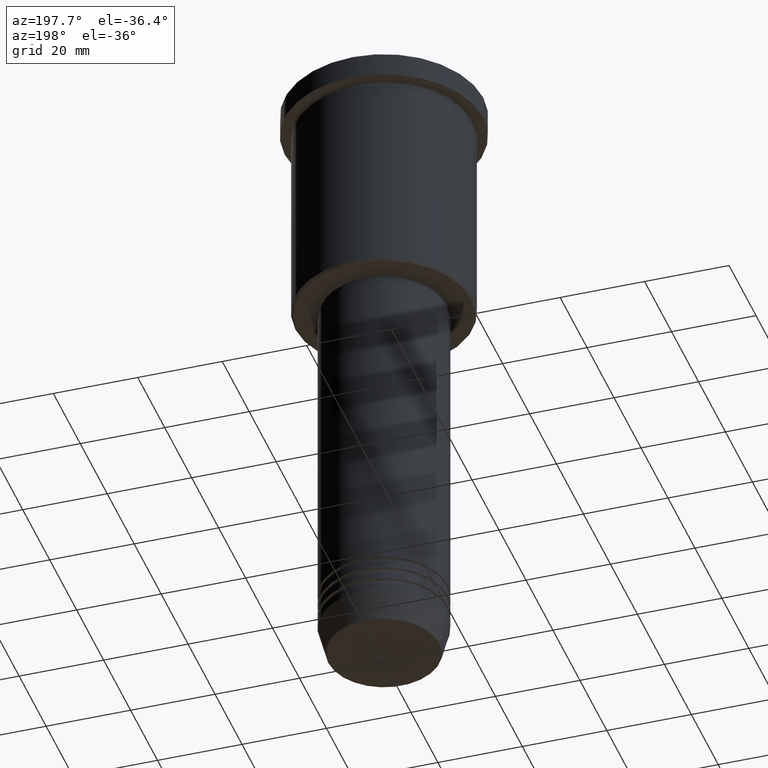
[diagram: clean part render]
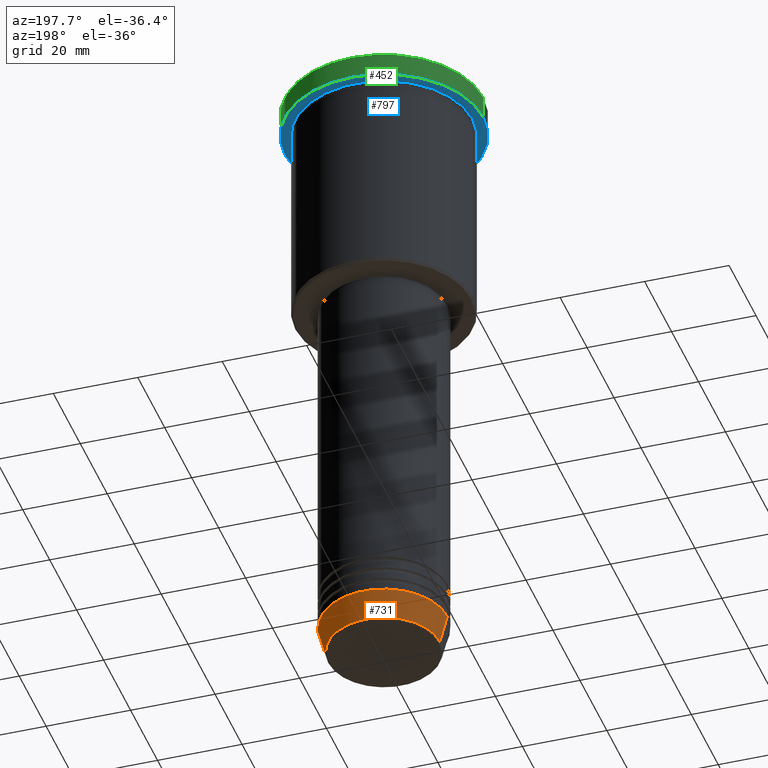
[diagram: same view with three faces highlighted in distinct colors, each labeled with its STEP entity id]
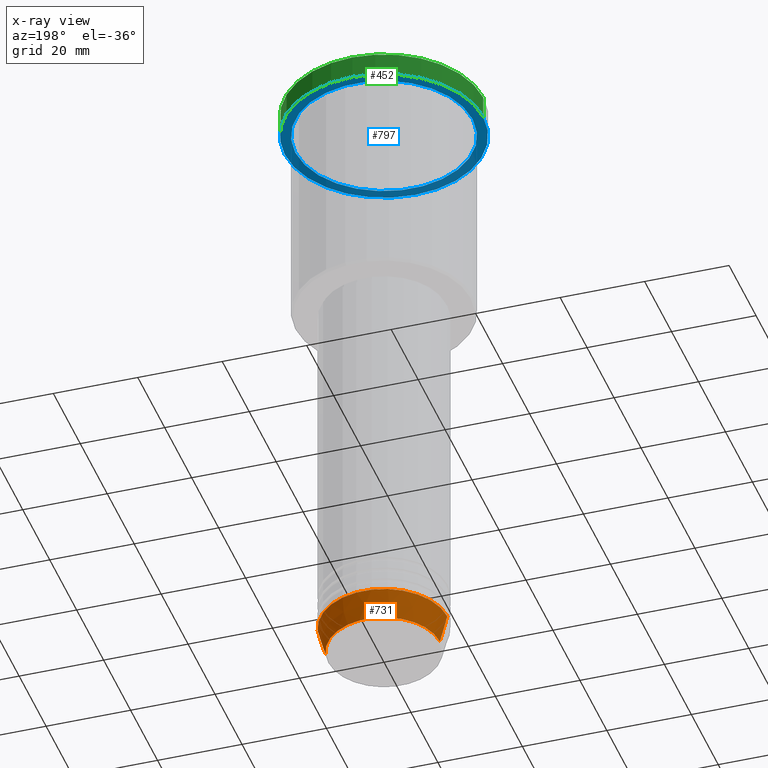
[diagram: x-ray of the same camera — body ghosted, the three highlighted faces saturated]
A machine part, auxiliary view with three faces highlighted in distinct colors.
The next image is the same camera in x-ray (body ghosted, the three faces saturated) — at least one of them is partly hidden behind the body in this view.
Their STEP definitions:

[orange] entity #731 — the highlighted conical surface has half-angle 15 deg.
#5 = DIRECTION ( 'NONE',  ( 0.2588190451025209060, 0.000000000000000000, 0.9659258262890682012 ) ) ;
#38 = EDGE_LOOP ( 'NONE', ( #909, #671, #977, #490 ) ) ;
#45 = DIRECTION ( 'NONE',  ( -0.000000000000000000, -0.000000000000000000, 1.000000000000000000 ) ) ;
#67 = VERTEX_POINT ( 'NONE', #775 ) ;
#128 = LINE ( 'NONE', #874, #614 ) ;
#214 = FACE_OUTER_BOUND ( 'NONE', #38, .T. ) ;
#221 = DIRECTION ( 'NONE',  ( -0.000000000000000000, -0.000000000000000000, 1.000000000000000000 ) ) ;
#228 = CIRCLE ( 'NONE', #479, 13.22365507213719305 ) ;
#239 = DIRECTION ( 'NONE',  ( -0.2588190451025209060, 3.169619151431766790E-17, 0.9659258262890682012 ) ) ;
#264 = CARTESIAN_POINT ( 'NONE',  ( 15.00000000000000000, 0.000000000000000000, -144.0000000000000284 ) ) ;
#275 = EDGE_CURVE ( 'NONE', #789, #67, #128, .T. ) ;
#313 = VERTEX_POINT ( 'NONE', #1082 ) ;
#403 = CONICAL_SURFACE ( 'NONE', #540, 15.00000000000000000, 0.2617993877991495744 ) ;
#479 = AXIS2_PLACEMENT_3D ( 'NONE', #1087, #45, #1050 ) ;
#490 = ORIENTED_EDGE ( 'NONE', *, *, #580, .F. ) ;
#530 = DIRECTION ( 'NONE',  ( 1.000000000000000000, 0.000000000000000000, 0.000000000000000000 ) ) ;
#540 = AXIS2_PLACEMENT_3D ( 'NONE', #1054, #221, #959 ) ;
#541 = AXIS2_PLACEMENT_3D ( 'NONE', #622, #993, #530 ) ;
#580 = EDGE_CURVE ( 'NONE', #1032, #313, #894, .T. ) ;
#614 = VECTOR ( 'NONE', #239, 1000.000000000000000 ) ;
#622 = CARTESIAN_POINT ( 'NONE',  ( 0.000000000000000000, 0.000000000000000000, -144.0000000000000284 ) ) ;
#671 = ORIENTED_EDGE ( 'NONE', *, *, #275, .T. ) ;
#731 = ADVANCED_FACE ( 'NONE', ( #214 ), #403, .T. ) ;
#775 = CARTESIAN_POINT ( 'NONE',  ( -15.00000000000000000, 1.836970198721029589E-15, -144.0000000000000284 ) ) ;
#789 = VERTEX_POINT ( 'NONE', #1115 ) ;
#795 = CIRCLE ( 'NONE', #541, 15.00000000000000000 ) ;
#872 = EDGE_CURVE ( 'NONE', #1032, #789, #228, .T. ) ;
#874 = CARTESIAN_POINT ( 'NONE',  ( -15.00000000000000000, 1.836970198721029589E-15, -144.0000000000000284 ) ) ;
#894 = LINE ( 'NONE', #264, #983 ) ;
#909 = ORIENTED_EDGE ( 'NONE', *, *, #872, .T. ) ;
#923 = EDGE_CURVE ( 'NONE', #313, #67, #795, .T. ) ;
#959 = DIRECTION ( 'NONE',  ( 1.000000000000000000, 0.000000000000000000, 0.000000000000000000 ) ) ;
#977 = ORIENTED_EDGE ( 'NONE', *, *, #923, .F. ) ;
#983 = VECTOR ( 'NONE', #5, 1000.000000000000000 ) ;
#993 = DIRECTION ( 'NONE',  ( -0.000000000000000000, -0.000000000000000000, 1.000000000000000000 ) ) ;
#1032 = VERTEX_POINT ( 'NONE', #1181 ) ;
#1050 = DIRECTION ( 'NONE',  ( 1.000000000000000000, 0.000000000000000000, 0.000000000000000000 ) ) ;
#1054 = CARTESIAN_POINT ( 'NONE',  ( 0.000000000000000000, 0.000000000000000000, -144.0000000000000284 ) ) ;
#1082 = CARTESIAN_POINT ( 'NONE',  ( 15.00000000000000000, 0.000000000000000000, -144.0000000000000284 ) ) ;
#1087 = CARTESIAN_POINT ( 'NONE',  ( 0.000000000000000000, 0.000000000000000000, -150.6294095225512706 ) ) ;
#1115 = CARTESIAN_POINT ( 'NONE',  ( -13.22365507213719305, 1.728200442216588780E-15, -150.6294095225512706 ) ) ;
#1181 = CARTESIAN_POINT ( 'NONE',  ( 13.22365507213719305, 0.000000000000000000, -150.6294095225512706 ) ) ;

[blue] entity #797 — the highlighted planar face has unit normal (0, 0, -1).
#55 = DIRECTION ( 'NONE',  ( 1.000000000000000000, 0.000000000000000000, 0.000000000000000000 ) ) ;
#69 = FACE_BOUND ( 'NONE', #624, .T. ) ;
#132 = AXIS2_PLACEMENT_3D ( 'NONE', #584, #957, #619 ) ;
#135 = CARTESIAN_POINT ( 'NONE',  ( 0.000000000000000000, 0.000000000000000000, -5.999999999999994671 ) ) ;
#169 = VERTEX_POINT ( 'NONE', #697 ) ;
#247 = AXIS2_PLACEMENT_3D ( 'NONE', #599, #805, #55 ) ;
#253 = EDGE_CURVE ( 'NONE', #169, #1161, #934, .T. ) ;
#273 = DIRECTION ( 'NONE',  ( 1.000000000000000000, 0.000000000000000000, 0.000000000000000000 ) ) ;
#291 = AXIS2_PLACEMENT_3D ( 'NONE', #135, #508, #273 ) ;
#301 = EDGE_CURVE ( 'NONE', #454, #329, #1172, .T. ) ;
#320 = ORIENTED_EDGE ( 'NONE', *, *, #253, .F. ) ;
#329 = VERTEX_POINT ( 'NONE', #807 ) ;
#343 = ORIENTED_EDGE ( 'NONE', *, *, #301, .T. ) ;
#395 = ORIENTED_EDGE ( 'NONE', *, *, #520, .F. ) ;
#454 = VERTEX_POINT ( 'NONE', #1129 ) ;
#500 = AXIS2_PLACEMENT_3D ( 'NONE', #701, #967, #787 ) ;
#508 = DIRECTION ( 'NONE',  ( -0.000000000000000000, -0.000000000000000000, 1.000000000000000000 ) ) ;
#520 = EDGE_CURVE ( 'NONE', #1161, #169, #776, .T. ) ;
#584 = CARTESIAN_POINT ( 'NONE',  ( 0.000000000000000000, 0.000000000000000000, -5.999999999999994671 ) ) ;
#599 = CARTESIAN_POINT ( 'NONE',  ( 0.000000000000000000, 0.000000000000000000, -5.999999999999994671 ) ) ;
#619 = DIRECTION ( 'NONE',  ( -1.000000000000000000, 0.000000000000000000, 0.000000000000000000 ) ) ;
#624 = EDGE_LOOP ( 'NONE', ( #1014, #343 ) ) ;
#638 = AXIS2_PLACEMENT_3D ( 'NONE', #881, #813, #1178 ) ;
#697 = CARTESIAN_POINT ( 'NONE',  ( -23.50000000000000000, 2.877919977996280320E-15, -5.999999999999994671 ) ) ;
#701 = CARTESIAN_POINT ( 'NONE',  ( 0.000000000000000000, 23.50000000000000000, -5.999999999999994671 ) ) ;
#707 = FACE_OUTER_BOUND ( 'NONE', #1105, .T. ) ;
#776 = CIRCLE ( 'NONE', #291, 23.50000000000000000 ) ;
#781 = PLANE ( 'NONE',  #500 ) ;
#787 = DIRECTION ( 'NONE',  ( -1.000000000000000000, 0.000000000000000000, -0.000000000000000000 ) ) ;
#797 = ADVANCED_FACE ( 'NONE', ( #69, #707 ), #781, .T. ) ;
#805 = DIRECTION ( 'NONE',  ( -0.000000000000000000, -0.000000000000000000, 1.000000000000000000 ) ) ;
#807 = CARTESIAN_POINT ( 'NONE',  ( -21.00000000000000000, 0.000000000000000000, -5.999999999999994671 ) ) ;
#813 = DIRECTION ( 'NONE',  ( -0.000000000000000000, -0.000000000000000000, 1.000000000000000000 ) ) ;
#881 = CARTESIAN_POINT ( 'NONE',  ( 0.000000000000000000, 0.000000000000000000, -5.999999999999994671 ) ) ;
#924 = EDGE_CURVE ( 'NONE', #329, #454, #1009, .T. ) ;
#934 = CIRCLE ( 'NONE', #247, 23.50000000000000000 ) ;
#957 = DIRECTION ( 'NONE',  ( -0.000000000000000000, -0.000000000000000000, 1.000000000000000000 ) ) ;
#967 = DIRECTION ( 'NONE',  ( 0.000000000000000000, 0.000000000000000000, -1.000000000000000000 ) ) ;
#1009 = CIRCLE ( 'NONE', #638, 21.00000000000000000 ) ;
#1014 = ORIENTED_EDGE ( 'NONE', *, *, #924, .T. ) ;
#1064 = CARTESIAN_POINT ( 'NONE',  ( 23.50000000000000000, 0.000000000000000000, -5.999999999999994671 ) ) ;
#1105 = EDGE_LOOP ( 'NONE', ( #395, #320 ) ) ;
#1129 = CARTESIAN_POINT ( 'NONE',  ( 21.00000000000000000, 2.571758278209441661E-15, -5.999999999999994671 ) ) ;
#1161 = VERTEX_POINT ( 'NONE', #1064 ) ;
#1172 = CIRCLE ( 'NONE', #132, 21.00000000000000000 ) ;
#1178 = DIRECTION ( 'NONE',  ( -1.000000000000000000, 0.000000000000000000, 0.000000000000000000 ) ) ;

[green] entity #452 — the highlighted cylindrical surface (partial cylindrical patch) has radius 23.5 mm, axis along (-0, -0, 1).
#9 = CIRCLE ( 'NONE', #248, 23.50000000000000000 ) ;
#19 = VERTEX_POINT ( 'NONE', #889 ) ;
#53 = DIRECTION ( 'NONE',  ( 0.000000000000000000, 0.000000000000000000, -1.000000000000000000 ) ) ;
#104 = CARTESIAN_POINT ( 'NONE',  ( -23.50000000000000000, 2.877919977996280320E-15, -0.5000000000000143219 ) ) ;
#135 = CARTESIAN_POINT ( 'NONE',  ( 0.000000000000000000, 0.000000000000000000, -5.999999999999994671 ) ) ;
#156 = VERTEX_POINT ( 'NONE', #104 ) ;
#169 = VERTEX_POINT ( 'NONE', #697 ) ;
#248 = AXIS2_PLACEMENT_3D ( 'NONE', #338, #53, #708 ) ;
#273 = DIRECTION ( 'NONE',  ( 1.000000000000000000, 0.000000000000000000, 0.000000000000000000 ) ) ;
#291 = AXIS2_PLACEMENT_3D ( 'NONE', #135, #508, #273 ) ;
#338 = CARTESIAN_POINT ( 'NONE',  ( 0.000000000000000000, 0.000000000000000000, -0.5000000000000143219 ) ) ;
#428 = EDGE_CURVE ( 'NONE', #169, #156, #655, .T. ) ;
#435 = ORIENTED_EDGE ( 'NONE', *, *, #520, .T. ) ;
#452 = ADVANCED_FACE ( 'NONE', ( #931 ), #1045, .T. ) ;
#476 = DIRECTION ( 'NONE',  ( -0.000000000000000000, -0.000000000000000000, 1.000000000000000000 ) ) ;
#489 = CARTESIAN_POINT ( 'NONE',  ( -23.50000000000000000, 2.877919977996280320E-15, 0.000000000000000000 ) ) ;
#505 = ORIENTED_EDGE ( 'NONE', *, *, #552, .T. ) ;
#508 = DIRECTION ( 'NONE',  ( -0.000000000000000000, -0.000000000000000000, 1.000000000000000000 ) ) ;
#520 = EDGE_CURVE ( 'NONE', #1161, #169, #776, .T. ) ;
#522 = ORIENTED_EDGE ( 'NONE', *, *, #711, .F. ) ;
#552 = EDGE_CURVE ( 'NONE', #156, #19, #9, .T. ) ;
#571 = DIRECTION ( 'NONE',  ( -0.000000000000000000, -0.000000000000000000, 1.000000000000000000 ) ) ;
#572 = DIRECTION ( 'NONE',  ( -0.000000000000000000, -0.000000000000000000, 1.000000000000000000 ) ) ;
#655 = LINE ( 'NONE', #489, #774 ) ;
#663 = LINE ( 'NONE', #1110, #1106 ) ;
#697 = CARTESIAN_POINT ( 'NONE',  ( -23.50000000000000000, 2.877919977996280320E-15, -5.999999999999994671 ) ) ;
#708 = DIRECTION ( 'NONE',  ( 1.000000000000000000, 0.000000000000000000, 0.000000000000000000 ) ) ;
#711 = EDGE_CURVE ( 'NONE', #1161, #19, #663, .T. ) ;
#774 = VECTOR ( 'NONE', #476, 1000.000000000000000 ) ;
#776 = CIRCLE ( 'NONE', #291, 23.50000000000000000 ) ;
#778 = CARTESIAN_POINT ( 'NONE',  ( 0.000000000000000000, 0.000000000000000000, 0.000000000000000000 ) ) ;
#889 = CARTESIAN_POINT ( 'NONE',  ( 23.50000000000000000, 0.000000000000000000, -0.5000000000000143219 ) ) ;
#931 = FACE_OUTER_BOUND ( 'NONE', #966, .T. ) ;
#958 = DIRECTION ( 'NONE',  ( 1.000000000000000000, 0.000000000000000000, 0.000000000000000000 ) ) ;
#966 = EDGE_LOOP ( 'NONE', ( #435, #1083, #505, #522 ) ) ;
#1045 = CYLINDRICAL_SURFACE ( 'NONE', #1062, 23.50000000000000000 ) ;
#1062 = AXIS2_PLACEMENT_3D ( 'NONE', #778, #571, #958 ) ;
#1064 = CARTESIAN_POINT ( 'NONE',  ( 23.50000000000000000, 0.000000000000000000, -5.999999999999994671 ) ) ;
#1083 = ORIENTED_EDGE ( 'NONE', *, *, #428, .T. ) ;
#1106 = VECTOR ( 'NONE', #572, 1000.000000000000000 ) ;
#1110 = CARTESIAN_POINT ( 'NONE',  ( 23.50000000000000000, 0.000000000000000000, 0.000000000000000000 ) ) ;
#1161 = VERTEX_POINT ( 'NONE', #1064 ) ;